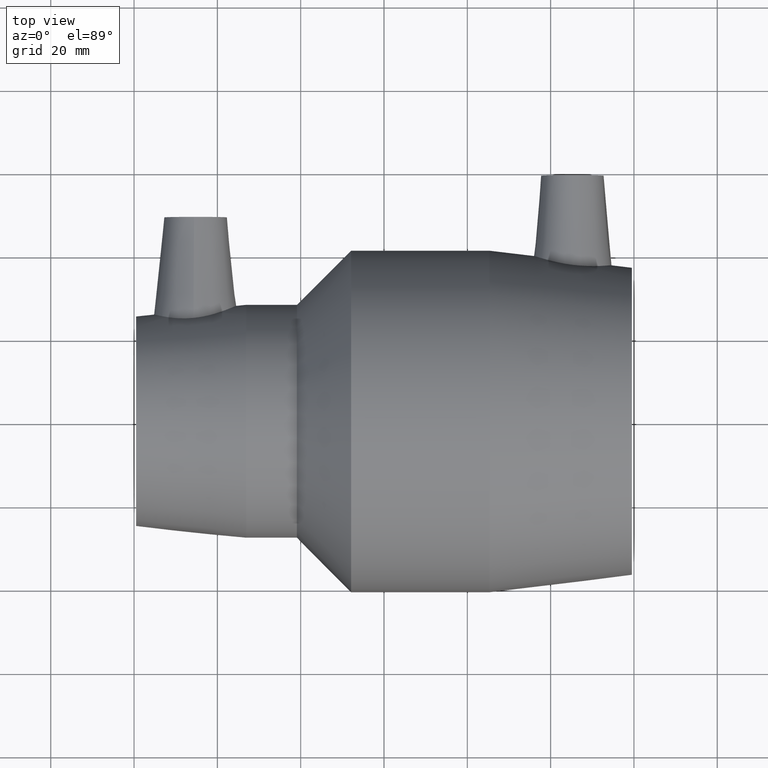
[diagram: clean part render]
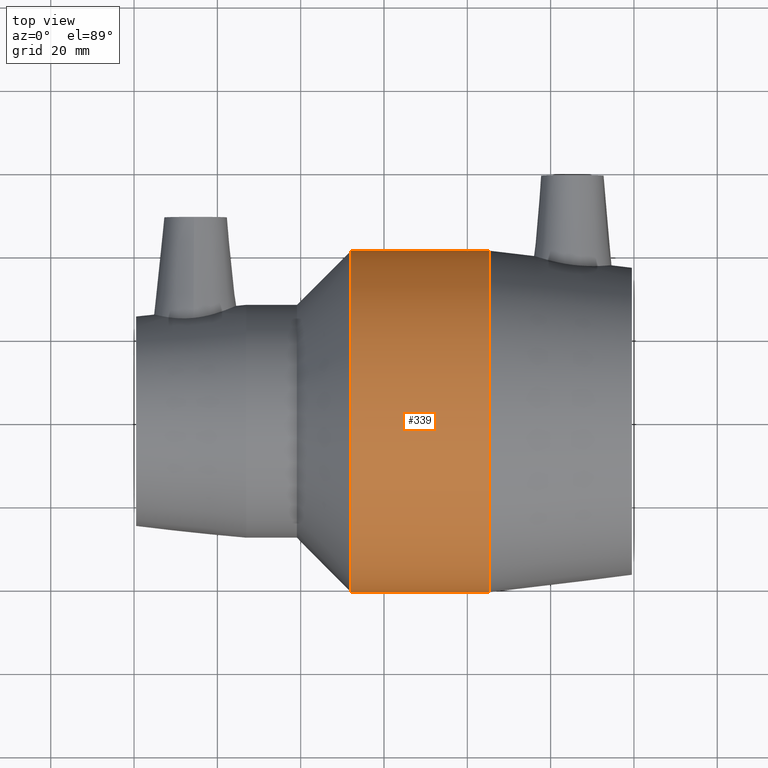
[diagram: same view with one face highlighted and labeled with its STEP entity id]
A machine part, top view. The second image highlights one B-rep face of the part: STEP entity #339.
In plain terms, the highlighted cylindrical surface (bore or boss wall) has radius 41 mm, axis along (1, 0, 0).
Its self-contained STEP definition (entity closure, byte-faithful):
#37=FACE_BOUND('',#125,.T.);
#61=CYLINDRICAL_SURFACE('',#385,41.);
#81=FACE_OUTER_BOUND('',#124,.T.);
#124=EDGE_LOOP('',(#277));
#125=EDGE_LOOP('',(#278));
#172=CIRCLE('',#384,41.);
#173=CIRCLE('',#386,41.);
#203=VERTEX_POINT('',#649);
#204=VERTEX_POINT('',#652);
#234=EDGE_CURVE('',#203,#203,#172,.T.);
#235=EDGE_CURVE('',#204,#204,#173,.T.);
#277=ORIENTED_EDGE('',*,*,#235,.F.);
#278=ORIENTED_EDGE('',*,*,#234,.T.);
#339=ADVANCED_FACE('',(#81,#37),#61,.T.);
#384=AXIS2_PLACEMENT_3D('',#650,#472,#473);
#385=AXIS2_PLACEMENT_3D('',#651,#474,#475);
#386=AXIS2_PLACEMENT_3D('',#653,#476,#477);
#472=DIRECTION('center_axis',(1.,1.83697019872103E-16,0.));
#473=DIRECTION('ref_axis',(0.,0.,-1.));
#474=DIRECTION('center_axis',(1.,1.83697019872103E-16,0.));
#475=DIRECTION('ref_axis',(-1.68112701893672E-16,1.,0.));
#476=DIRECTION('center_axis',(1.,1.83697019872103E-16,0.));
#477=DIRECTION('ref_axis',(0.,0.,-1.));
#649=CARTESIAN_POINT('',(-7.9,41.,0.));
#650=CARTESIAN_POINT('Origin',(-7.89999999999999,9.47876622540052E-15,0.));
#651=CARTESIAN_POINT('Origin',(8.7,1.25281367552774E-14,0.));
#652=CARTESIAN_POINT('',(25.3,41.,0.));
#653=CARTESIAN_POINT('Origin',(25.3,1.55775072851543E-14,0.));